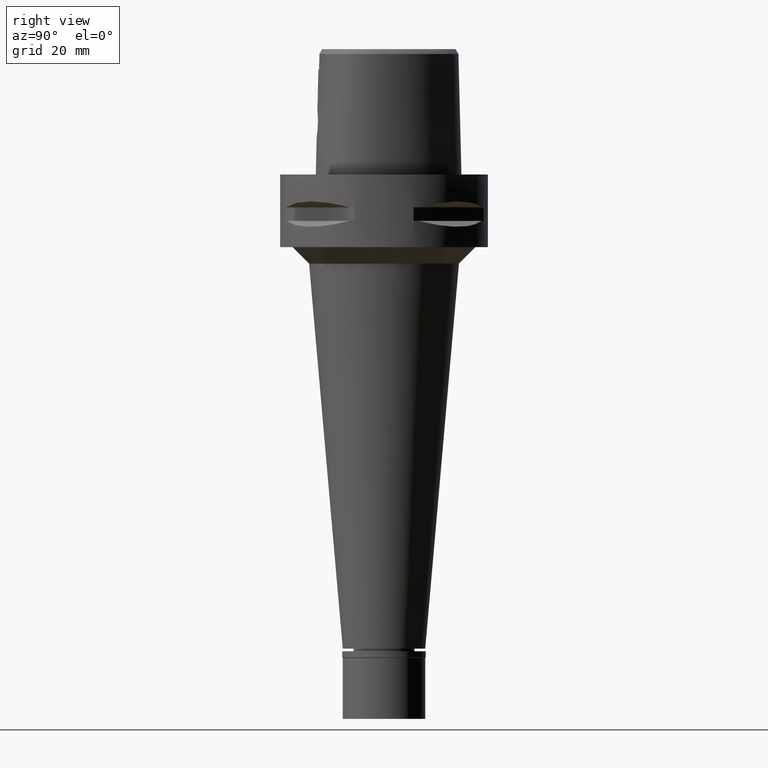
[diagram: clean part render]
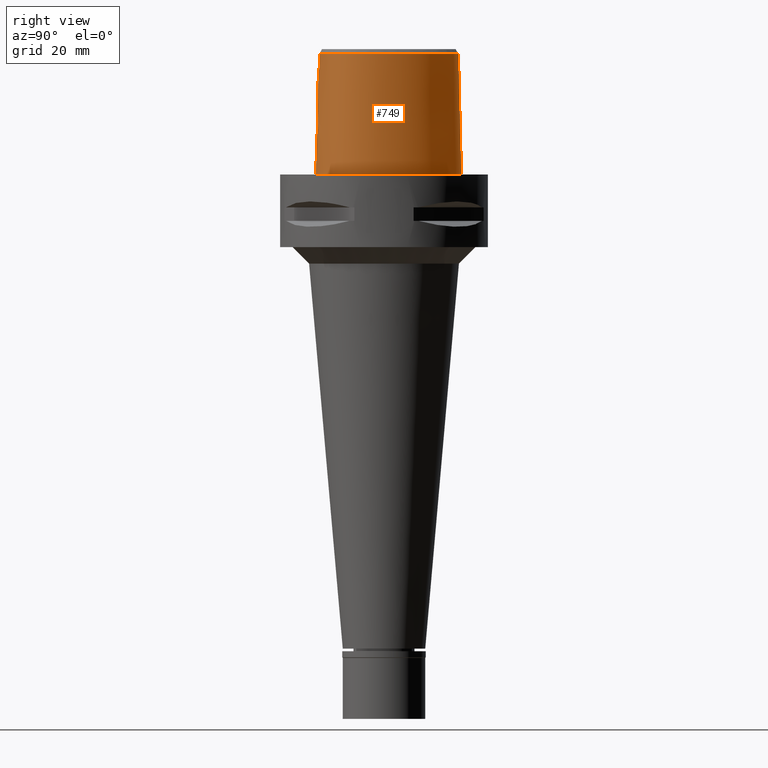
[diagram: same view with one face highlighted and labeled with its STEP entity id]
A machine part, right view. The second image highlights one B-rep face of the part: STEP entity #749.
In plain terms, the highlighted face is a freeform B-spline surface patch.
Its self-contained STEP definition (entity closure, byte-faithful):
#12 = CARTESIAN_POINT ( 'NONE',  ( 2.568271205287000036, 23.31126238154999797, -0.7304375839704999596 ) ) ;
#32 = CARTESIAN_POINT ( 'NONE',  ( 21.05621915639000008, -0.4440251511350999936, 37.25231678249000566 ) ) ;
#45 = CARTESIAN_POINT ( 'NONE',  ( 3.799139208486999594E-11, 23.47499999999000053, 6.972200594645999482E-14 ) ) ;
#58 = CARTESIAN_POINT ( 'NONE',  ( 18.89485288838000088, -12.27684381337999930, 37.25231678249000566 ) ) ;
#61 = CARTESIAN_POINT ( 'NONE',  ( 2.963663714774203761, -20.09292616174767332, 18.26078922981426444 ) ) ;
#80 = CARTESIAN_POINT ( 'NONE',  ( -0.4431573443615000052, 22.53713883449000122, 37.25231678249000566 ) ) ;
#104 = CARTESIAN_POINT ( 'NONE',  ( 0.5662264631320998998, 22.56729423618000041, 37.25231678249000566 ) ) ;
#120 = CARTESIAN_POINT ( 'NONE',  ( 5.098437017283536932, 22.52602539063039089, -8.944667923005411581E-16 ) ) ;
#175 = CARTESIAN_POINT ( 'NONE',  ( 17.90324024157905924, -13.53935104435990056, 36.52186680739948343 ) ) ;
#202 = CARTESIAN_POINT ( 'NONE',  ( 1.512241740947311897, -20.34898939911309412, 11.74291348788425182 ) ) ;
#214 = EDGE_CURVE ( 'NONE', #5008, #4435, #1719, .T. ) ;
#220 = CARTESIAN_POINT ( 'NONE',  ( -0.4520500676064000412, -20.37458451787000158, 11.93048053818000120 ) ) ;
#233 = CARTESIAN_POINT ( 'NONE',  ( 0.8992242105118642970, -20.37493864171640112, 11.54888304297133850 ) ) ;
#240 = B_SPLINE_CURVE_WITH_KNOTS ( 'NONE', 3,
 ( #4028, #2852, #437, #3571 ),
 .UNSPECIFIED., .F., .F.,
 ( 4, 4 ),
 ( 0.0000000000000000000, 1.000000000000000000 ),
 .UNSPECIFIED. ) ;
#248 = CARTESIAN_POINT ( 'NONE',  ( 1.853272125638999901, -20.08023992014999948, 24.59139866034000121 ) ) ;
#250 = CARTESIAN_POINT ( 'NONE',  ( 2.041042029990999821E-08, -19.88004246002000031, 31.80000004972000127 ) ) ;
#258 = CARTESIAN_POINT ( 'NONE',  ( 3.601204257517719665, -20.14847629606039092, 13.64574922402664470 ) ) ;
#270 = CARTESIAN_POINT ( 'NONE',  ( 11.02138184146999933, -18.31230465117999984, 24.59139866034000121 ) ) ;
#283 = CARTESIAN_POINT ( 'NONE',  ( -6.936546298697000348E-13, -20.38876923348000147, 11.44999999999999929 ) ) ;
#333 = CARTESIAN_POINT ( 'NONE',  ( 1.857884076962256881, -20.14843429220476878, 19.09932929553220049 ) ) ;
#343 = CARTESIAN_POINT ( 'NONE',  ( 16.57726040872999818, -15.19304470656999939, 24.59139866034000121 ) ) ;
#370 = CARTESIAN_POINT ( 'NONE',  ( 21.13154892185999856, -6.714587082669999596, 37.25231678249000566 ) ) ;
#374 = VERTEX_POINT ( 'NONE', #2181 ) ;
#386 = CARTESIAN_POINT ( 'NONE',  ( 21.07429999882302596, -0.4408303635841511192, 36.52186680739948343 ) ) ;
#397 = CARTESIAN_POINT ( 'NONE',  ( 21.31039837224000166, -4.105938496790999537, 37.25231678249000566 ) ) ;
#411 = CARTESIAN_POINT ( 'NONE',  ( 13.70645019739050952, 15.04851265230145607, 36.52186680739948343 ) ) ;
#419 = CARTESIAN_POINT ( 'NONE',  ( 20.65879052760000079, -10.48283621446000069, 11.93048053818000120 ) ) ;
#431 = CARTESIAN_POINT ( 'NONE',  ( 7.571159434350728468, 21.31457031249556167, -8.944667923005411581E-16 ) ) ;
#437 = CARTESIAN_POINT ( 'NONE',  ( 1.251533272183361412, -19.88005341395202308, 31.80000012137769616 ) ) ;
#443 = CARTESIAN_POINT ( 'NONE',  ( 20.96392254220999973, -8.820258326734000676, 24.59139866034000121 ) ) ;
#462 = CARTESIAN_POINT ( 'NONE',  ( 10.91891095220743679, -18.03046396092910086, 36.52186680739948343 ) ) ;
#479 = CARTESIAN_POINT ( 'NONE',  ( 2.441475652817582276, -20.12145690552322463, 18.73255419730240945 ) ) ;
#488 = CARTESIAN_POINT ( 'NONE',  ( 10.74572891059364999, 19.17433593750017806, -8.944667923005411581E-16 ) ) ;
#499 = EDGE_LOOP ( 'NONE', ( #3419, #3217, #4010, #2018, #997, #2231, #2820, #616 ) ) ;
#502 = CARTESIAN_POINT ( 'NONE',  ( -1.812904133302999920E-11, 22.56201468012000078, 36.52186680743999858 ) ) ;
#503 = CARTESIAN_POINT ( 'NONE',  ( 3.664531516593255933, -20.05177522854884486, 17.23667186347703151 ) ) ;
#559 = CARTESIAN_POINT ( 'NONE',  ( 3.799139208486999594E-11, 23.47499999999000053, 6.972200594645999482E-14 ) ) ;
#574 = CARTESIAN_POINT ( 'NONE',  ( 4.467522181835875017, -19.48130276147496787, 36.52186680739948343 ) ) ;
#597 = CARTESIAN_POINT ( 'NONE',  ( 3.749619629275789290, -20.04776342526935196, 17.03066201961066639 ) ) ;
#616 = ORIENTED_EDGE ( 'NONE', *, *, #2611, .T. ) ;
#625 = CARTESIAN_POINT ( 'NONE',  ( 3.927835586672350665, -20.09244225005365436, 14.47776275463071904 ) ) ;
#626 = CARTESIAN_POINT ( 'NONE',  ( 0.5826623333935999627, 22.88447448249999994, 24.59139866034000121 ) ) ;
#651 = CARTESIAN_POINT ( 'NONE',  ( 2.714805267639515129, -20.25771215066832553, 12.49436786205450822 ) ) ;
#699 = CARTESIAN_POINT ( 'NONE',  ( 4.038472190140931062, -20.06169765068718647, 15.18805390983102654 ) ) ;
#739 = CARTESIAN_POINT ( 'NONE',  ( 19.81622831685999842, -11.44090475189000067, 24.59139866034000121 ) ) ;
#749 = ADVANCED_FACE ( 'NONE', ( #3823 ), #3201, .T. ) ;
#760 = CARTESIAN_POINT ( 'NONE',  ( 21.94536983274000264, -4.102220498972000584, 11.93048053818000120 ) ) ;
#778 = CARTESIAN_POINT ( 'NONE',  ( 19.88562079789111081, 4.345879946636903135, 36.52186680739948343 ) ) ;
#786 = CARTESIAN_POINT ( 'NONE',  ( 21.68301106119000110, -0.3332743948079999741, 11.93048053818000120 ) ) ;
#814 = CARTESIAN_POINT ( 'NONE',  ( 2.438150623161000397, 22.68791648776000258, 24.59139866034000121 ) ) ;
#824 = CARTESIAN_POINT ( 'NONE',  ( 18.56841065141960812, -14.16937988280595739, -8.944667923005411581E-16 ) ) ;
#833 = CARTESIAN_POINT ( 'NONE',  ( 13.69241983077999869, 15.03666395032999858, 37.25231678249000566 ) ) ;
#836 = CARTESIAN_POINT ( 'NONE',  ( 1.615797869211369031, -20.15746371882925558, 19.21438957845421314 ) ) ;
#843 = CARTESIAN_POINT ( 'NONE',  ( 14.40795638958558200, 15.64093750000613348, -8.944667923005411581E-16 ) ) ;
#856 = CARTESIAN_POINT ( 'NONE',  ( 2.373090332098000133, 22.37624354085999911, 37.25231678249000566 ) ) ;
#873 = CARTESIAN_POINT ( 'NONE',  ( 14.67337964419943042, -17.21410156249768519, -8.944667923005411581E-16 ) ) ;
#892 = CARTESIAN_POINT ( 'NONE',  ( 0.0000000000000000000, -20.18628283968999781, 19.55000000000000071 ) ) ;
#992 = CARTESIAN_POINT ( 'NONE',  ( 18.90964962507846536, -12.28759713487224658, 36.52186680739948343 ) ) ;
#997 = ORIENTED_EDGE ( 'NONE', *, *, #1985, .T. ) ;
#1027 = DIRECTION ( 'NONE',  ( 1.536145637057960394E-12, 0.02499051290971940689, -0.9996876883629751687 ) ) ;
#1028 = CARTESIAN_POINT ( 'NONE',  ( -0.4439347129453000140, -19.74161844598999949, 37.25231678249000566 ) ) ;
#1043 = CARTESIAN_POINT ( 'NONE',  ( 1.946932004676015238, -20.32307767112846975, 11.93880059974637398 ) ) ;
#1059 = CARTESIAN_POINT ( 'NONE',  ( 11.23887130171000059, -18.91049775788000176, -0.7304375839704999596 ) ) ;
#1072 = CARTESIAN_POINT ( 'NONE',  ( 4.050056915598086782, -20.04604162830171177, 15.75352367833779788 ) ) ;
#1094 = CARTESIAN_POINT ( 'NONE',  ( 1.029075032816727520, -20.37061658179029067, 11.58059618244477207 ) ) ;
#1117 = CARTESIAN_POINT ( 'NONE',  ( 3.918450559639469866, -20.04172061130668681, 16.53268210946604100 ) ) ;
#1130 = CARTESIAN_POINT ( 'NONE',  ( 21.62788410249000393, -4.104079497880999128, 24.59139866034000121 ) ) ;
#1144 = CARTESIAN_POINT ( 'NONE',  ( 1.676170890441996519, -20.15531313274218306, 19.18748000605742732 ) ) ;
#1148 = CARTESIAN_POINT ( 'NONE',  ( -1.812904133302999920E-11, 22.56201468012000078, 36.52186680743999858 ) ) ;
#1155 = CARTESIAN_POINT ( 'NONE',  ( 22.07548128874000071, -6.850245535142999387, -0.7304375839704999596 ) ) ;
#1178 = CARTESIAN_POINT ( 'NONE',  ( 19.86834436674000415, 4.339653687837000007, 37.25231678249000566 ) ) ;
#1203 = CARTESIAN_POINT ( 'NONE',  ( 7.580410838945000229, 21.33037926083000002, -0.7304375839704999596 ) ) ;
#1231 = CARTESIAN_POINT ( 'NONE',  ( 20.76670354688000231, 4.663413653178999141, -0.7304375839704999596 ) ) ;
#1234 = CARTESIAN_POINT ( 'NONE',  ( 3.346839698137017205, -20.07044986577229650, 17.78445641054264570 ) ) ;
#1241 = CARTESIAN_POINT ( 'NONE',  ( 22.05732874322270121, -6.847636718749270379, -8.944667923005411581E-16 ) ) ;
#1254 = CARTESIAN_POINT ( 'NONE',  ( 3.266229437020722326, -20.07524359687617377, 17.89916302261439895 ) ) ;
#1299 = VERTEX_POINT ( 'NONE', #2941 ) ;
#1300 = CARTESIAN_POINT ( 'NONE',  ( 3.637738219117000238, -19.56971420299000286, 36.52185956443999970 ) ) ;
#1308 = CARTESIAN_POINT ( 'NONE',  ( -0.7025952887271000868, 23.15559749862999794, 11.93048053818000120 ) ) ;
#1349 = CARTESIAN_POINT ( 'NONE',  ( 3.637738219117000238, -19.56971420299000286, 36.52185956443999970 ) ) ;
#1377 = CARTESIAN_POINT ( 'NONE',  ( -6.936546298697000348E-13, -20.38876923348000147, 11.44999999999999929 ) ) ;
#1405 = CARTESIAN_POINT ( 'NONE',  ( 2.570157103600570370, -20.27168289956678038, 12.36915238101241599 ) ) ;
#1417 = LINE ( 'NONE', #1824, #4391 ) ;
#1429 = CARTESIAN_POINT ( 'NONE',  ( 3.714884036183550897, -20.13054316305255043, 13.88679975161858771 ) ) ;
#1440 = CARTESIAN_POINT ( 'NONE',  ( 6.232237598181000315, -19.68961187426999970, 24.59139866034000121 ) ) ;
#1456 = CARTESIAN_POINT ( 'NONE',  ( 1.734698794257270027, -20.33694537581526163, 11.83451168615765425 ) ) ;
#1472 = CARTESIAN_POINT ( 'NONE',  ( 14.36818034192000049, -16.67825731685000079, 24.59139866034000121 ) ) ;
#1487 = CARTESIAN_POINT ( 'NONE',  ( 3.787481123649921955, -20.04605982308304490, 16.93510773912660028 ) ) ;
#1506 = CARTESIAN_POINT ( 'NONE',  ( 3.950314841473463900, -20.04137577208484444, 16.40278404201346873 ) ) ;
#1546 = CARTESIAN_POINT ( 'NONE',  ( 20.36913779871999708, -10.35391845991999915, 24.59139866034000121 ) ) ;
#1568 = CARTESIAN_POINT ( 'NONE',  ( 20.16779742678000176, 4.447573676283999689, 24.59139866034000121 ) ) ;
#1589 = CARTESIAN_POINT ( 'NONE',  ( 7.259695479676999241, 20.78233571855999884, 24.59139866034000121 ) ) ;
#1613 = CARTESIAN_POINT ( 'NONE',  ( 14.21104802786999954, -16.40237711117000430, 37.25231678249000566 ) ) ;
#1638 = CARTESIAN_POINT ( 'NONE',  ( -0.4685451983303999812, 23.16976078515000026, 11.93048053818000120 ) ) ;
#1675 = CARTESIAN_POINT ( 'NONE',  ( 3.637738219117000238, -19.56971420299000286, 36.52185956443999970 ) ) ;
#1719 = B_SPLINE_CURVE_WITH_KNOTS ( 'NONE', 3,
 ( #1838, #3403, #4821, #1675 ),
 .UNSPECIFIED., .F., .F.,
 ( 4, 4 ),
 ( 0.0000000000000000000, 1.000000000000000000 ),
 .UNSPECIFIED. ) ;
#1761 = CARTESIAN_POINT ( 'NONE',  ( 14.22011350746447000, -16.41829354688364617, 36.52186680739948343 ) ) ;
#1787 = CARTESIAN_POINT ( 'NONE',  ( 0.2521712344239959158, -20.38876923348000503, 11.44999999999999751 ) ) ;
#1788 = CARTESIAN_POINT ( 'NONE',  ( -0.6642815369290000493, 22.52377652673999719, 37.25231678249000566 ) ) ;
#1811 = CARTESIAN_POINT ( 'NONE',  ( 1.223097168518407996, -20.36283687392326769, 11.63851210756519627 ) ) ;
#1824 = CARTESIAN_POINT ( 'NONE',  ( -1.812904133302999920E-11, 22.56201468012000078, 36.52186680743999858 ) ) ;
#1825 = CARTESIAN_POINT ( 'NONE',  ( 1.836480386884999927, -19.76356528371999843, 37.25231678249000566 ) ) ;
#1827 = CARTESIAN_POINT ( 'NONE',  ( 6.821602384384292943E-09, -19.98212988583243543, 27.71666688228181741 ) ) ;
#1835 = CARTESIAN_POINT ( 'NONE',  ( 3.646186824048230246, -20.14160291728383356, 13.73489521538706271 ) ) ;
#1838 = CARTESIAN_POINT ( 'NONE',  ( 3.736696120837999402, -19.67778323291999953, 31.80000004972999861 ) ) ;
#1849 = CARTESIAN_POINT ( 'NONE',  ( 10.91263711134999959, -18.01320809782000154, 37.25231678249000566 ) ) ;
#1863 = CARTESIAN_POINT ( 'NONE',  ( 3.828843160387036981, -20.04436026481759825, 16.82309517697780166 ) ) ;
#1889 = CARTESIAN_POINT ( 'NONE',  ( 3.734101483925077680, -20.12735841093752498, 13.93178299878139015 ) ) ;
#1910 = CARTESIAN_POINT ( 'NONE',  ( 3.128908175272121284, -20.08331652991464367, 18.07252174272648659 ) ) ;
#1921 = CARTESIAN_POINT ( 'NONE',  ( 4.987110684452000342, 22.24795284815000329, 11.93048053818000120 ) ) ;
#1938 = CARTESIAN_POINT ( 'NONE',  ( 4.757642236485140508, 21.67478320247805001, 36.52186680739948343 ) ) ;
#1948 = CARTESIAN_POINT ( 'NONE',  ( 17.80867312007999814, 10.28184210814000110, 11.93048053818000120 ) ) ;
#1964 = CARTESIAN_POINT ( 'NONE',  ( 21.32871516739777107, -4.105831245034501364, 36.52186680739948343 ) ) ;
#1972 = CARTESIAN_POINT ( 'NONE',  ( 20.09084477996000118, -11.59945464138999860, 11.93048053818000120 ) ) ;
#1985 = EDGE_CURVE ( 'NONE', #374, #2339, #5011, .T. ) ;
#1994 = CARTESIAN_POINT ( 'NONE',  ( 17.88993660319000156, -13.52675024955999916, 37.25231678249000566 ) ) ;
#2007 = CARTESIAN_POINT ( 'NONE',  ( 2.564517726975577006, 23.29328124999284455, -8.944667923005411581E-16 ) ) ;
#2016 = CARTESIAN_POINT ( 'NONE',  ( 14.17879762237999941, 15.44741198410000038, 11.93048053818000120 ) ) ;
#2018 = ORIENTED_EDGE ( 'NONE', *, *, #2321, .T. ) ;
#2019 = CARTESIAN_POINT ( 'NONE',  ( 3.560199545960234691, -20.05783334522597983, 17.44879127146177211 ) ) ;
#2030 = CARTESIAN_POINT ( 'NONE',  ( 19.64947365863864803, -12.82525390625422546, -8.944667923005411581E-16 ) ) ;
#2034 = CARTESIAN_POINT ( 'NONE',  ( 7.300578979382184031, -19.07170738131041787, 36.52186680739948343 ) ) ;
#2048 = CARTESIAN_POINT ( 'NONE',  ( 2.278271780665462654, -20.12965837756856047, 18.84858243060469718 ) ) ;
#2108 = CARTESIAN_POINT ( 'NONE',  ( 2.113823673067706910, -20.67499999999523652, -8.944667923005413553E-16 ) ) ;
#2158 = CARTESIAN_POINT ( 'NONE',  ( 3.756069937840027961, -20.04746516202720485, 17.01476473572080295 ) ) ;
#2173 = CARTESIAN_POINT ( 'NONE',  ( -0.6657939564071999605, -19.73734232002000155, 37.25231678249000566 ) ) ;
#2181 = CARTESIAN_POINT ( 'NONE',  ( 2.041042029990999821E-08, -19.88004246002000031, 31.80000004972000127 ) ) ;
#2228 = CARTESIAN_POINT ( 'NONE',  ( 6.841583710080860677E-09, -20.08420636276081694, 23.63333344114095524 ) ) ;
#2231 = ORIENTED_EDGE ( 'NONE', *, *, #4648, .F. ) ;
#2238 = CARTESIAN_POINT ( 'NONE',  ( 1.538196023384281963, -20.34760033576341698, 11.75346900688111873 ) ) ;
#2260 = B_SPLINE_CURVE_WITH_KNOTS ( 'NONE', 3,
 ( #1148, #5054, #4264, #1938, #3501, #3934, #411, #4284, #778, #386, #1964, #3526, #3702, #2547, #2469, #992, #175, #2442, #1761, #462, #2034, #574, #1349 ),
 .UNSPECIFIED., .F., .F.,
 ( 4, 1, 1, 1, 1, 1, 1, 1, 1, 1, 1, 1, 1, 1, 1, 1, 1, 1, 1, 1, 4 ),
 ( 0.0000000000000000000, 0.04382683003322051379, 0.08765366006602015592, 0.1314804900989251235, 0.1753073201318301189, 0.2629609801974295280, 0.3506146402631342696, 0.4382683003289440937, 0.5259219603945436416, 0.5697487904274485260, 0.6135756204602482722, 0.6574024504931531565, 0.6793158655095530296, 0.7012292805260580408, 0.7231426955424580250, 0.7450561105587526489, 0.7888829405916576443, 0.8327097706245625286, 0.8765366006573621638, 0.9641902607230984357, 1.000000000000000000 ),
 .UNSPECIFIED. ) ;
#2266 = CARTESIAN_POINT ( 'NONE',  ( 1.319918021587722201, -20.35862286549530609, 11.67005492354040541 ) ) ;
#2304 = CARTESIAN_POINT ( 'NONE',  ( 21.44619304415000016, -6.759806566827999852, 24.59139866034000121 ) ) ;
#2314 = CARTESIAN_POINT ( 'NONE',  ( 2.145109563004953479, -20.13623476436782767, 18.93764899034225735 ) ) ;
#2321 = EDGE_CURVE ( 'NONE', #5008, #374, #240, .T. ) ;
#2325 = CARTESIAN_POINT ( 'NONE',  ( 16.38077695828999936, -14.94316464521999954, 37.25231678249000566 ) ) ;
#2339 = VERTEX_POINT ( 'NONE', #3238 ) ;
#2352 = CARTESIAN_POINT ( 'NONE',  ( 7.420053159310999291, 21.05635748970000165, 11.93048053818000120 ) ) ;
#2378 = CARTESIAN_POINT ( 'NONE',  ( 19.66427014433000053, -12.83600704532999970, -0.7304375839704999596 ) ) ;
#2388 = CARTESIAN_POINT ( 'NONE',  ( 20.74942740880018377, 4.657187499999361435, -8.944667923005411581E-16 ) ) ;
#2395 = CARTESIAN_POINT ( 'NONE',  ( 7.099337800043000080, 20.50831394743000402, 37.25231678249000566 ) ) ;
#2399 = CARTESIAN_POINT ( 'NONE',  ( 1.028316776408467970, -20.17741541788669934, 19.45785258273984297 ) ) ;
#2425 = CARTESIAN_POINT ( 'NONE',  ( 2.871827064480841685, -20.09820085661024791, 18.35572725119103055 ) ) ;
#2438 = CARTESIAN_POINT ( 'NONE',  ( 16.95889172594020167, -15.67838867187442631, -8.944667923005411581E-16 ) ) ;
#2442 = CARTESIAN_POINT ( 'NONE',  ( 16.39211273426571935, -14.95758104716080794, 36.52186680739948343 ) ) ;
#2469 = CARTESIAN_POINT ( 'NONE',  ( 19.55745538001106354, -11.29150212658032082, 36.52186680739948343 ) ) ;
#2547 = CARTESIAN_POINT ( 'NONE',  ( 20.09619608768826637, -10.23243839430307034, 36.52186680739948343 ) ) ;
#2558 = CARTESIAN_POINT ( 'NONE',  ( -0.6718836854628000843, -20.05378860052000078, 24.59139866034000121 ) ) ;
#2571 = CARTESIAN_POINT ( 'NONE',  ( 3.047166273135562431, -20.22275119218792128, 12.81895386053286323 ) ) ;
#2584 = CARTESIAN_POINT ( 'NONE',  ( 1.886855603145999982, -20.71358919300000068, -0.7304375839704999596 ) ) ;
#2600 = CARTESIAN_POINT ( 'NONE',  ( 3.217746676397106320, -20.20246117936812524, 13.02641545331656303 ) ) ;
#2611 = EDGE_CURVE ( 'NONE', #2700, #3305, #4025, .T. ) ;
#2616 = CARTESIAN_POINT ( 'NONE',  ( 11.13012657158999907, -18.61140120453000080, 11.93048053818000120 ) ) ;
#2626 = CARTESIAN_POINT ( 'NONE',  ( 4.026066118139421057, -20.04247127186134136, 16.01314433202412246 ) ) ;
#2647 = CARTESIAN_POINT ( 'NONE',  ( 2.808534909594999185, -20.24816297014837474, 12.58189563908295128 ) ) ;
#2661 = CARTESIAN_POINT ( 'NONE',  ( -0.6779734145183999861, -20.37023488102000002, 11.93048053818000120 ) ) ;
#2685 = CARTESIAN_POINT ( 'NONE',  ( 21.76083716643999821, -6.805026050985000907, 11.93048053818000120 ) ) ;
#2700 = VERTEX_POINT ( 'NONE', #3726 ) ;
#2706 = CARTESIAN_POINT ( 'NONE',  ( 16.77374385917000410, -15.44292476791000190, 11.93048053818000120 ) ) ;
#2728 = CARTESIAN_POINT ( 'NONE',  ( 14.42198651819000155, 15.65278600097999906, -0.7304375839704999596 ) ) ;
#2754 = CARTESIAN_POINT ( 'NONE',  ( 2.503210914223999772, 22.99958943465999894, 11.93048053818000120 ) ) ;
#2780 = CARTESIAN_POINT ( 'NONE',  ( 18.35112157714999981, -13.96357039242000120, 11.93048053818000120 ) ) ;
#2782 = CARTESIAN_POINT ( 'NONE',  ( 2.894397137079437243, -20.09690797886509372, 18.33285490821693031 ) ) ;
#2801 = CARTESIAN_POINT ( 'NONE',  ( 0.6155340739164999464, 23.51883497514999988, -0.7304375839704999596 ) ) ;
#2820 = ORIENTED_EDGE ( 'NONE', *, *, #4440, .T. ) ;
#2835 = CARTESIAN_POINT ( 'NONE',  ( 2.673773366373647598, -20.10928484861024401, 18.54484060076604734 ) ) ;
#2852 = CARTESIAN_POINT ( 'NONE',  ( 2.503154195452322206, -19.81241979350790317, 31.80000012137769616 ) ) ;
#2941 = CARTESIAN_POINT ( 'NONE',  ( -6.936546298697000348E-13, -20.38876923348000147, 11.44999999999999929 ) ) ;
#2951 = CARTESIAN_POINT ( 'NONE',  ( 4.045002722263133954, -20.05852232572153326, 15.28257568076945283 ) ) ;
#2992 = CARTESIAN_POINT ( 'NONE',  ( 6.175998609135999295, -19.37631798774999581, 37.25231678249000566 ) ) ;
#3007 = CARTESIAN_POINT ( 'NONE',  ( 4.048214080092302325, -20.05577732092617538, 15.37582243512925828 ) ) ;
#3033 = CARTESIAN_POINT ( 'NONE',  ( 3.438614496833575895, -20.17221373686728825, 13.35618706787884769 ) ) ;
#3055 = CARTESIAN_POINT ( 'NONE',  ( 3.860417298872394376, -20.04330287886046236, 16.72646853219081464 ) ) ;
#3067 = CARTESIAN_POINT ( 'NONE',  ( 18.08416038109999846, 10.44089487092999846, -0.7304375839704999596 ) ) ;
#3093 = CARTESIAN_POINT ( 'NONE',  ( 20.07948506984999781, -10.22500070537000028, 37.25231678249000566 ) ) ;
#3113 = CARTESIAN_POINT ( 'NONE',  ( 10.75753573661000040, 19.18839675567999947, -0.7304375839704999596 ) ) ;
#3135 = CARTESIAN_POINT ( 'NONE',  ( 13.93560872657999994, 15.24203796720999904, 24.59139866034000121 ) ) ;
#3162 = CARTESIAN_POINT ( 'NONE',  ( 20.46725048683000026, 4.555493664732000347, 11.93048053818000120 ) ) ;
#3168 = CARTESIAN_POINT ( 'NONE',  ( 0.4954876483524907060, -20.18628283969000847, 19.54999999999999716 ) ) ;
#3177 = CARTESIAN_POINT ( 'NONE',  ( 20.34961798556402357, -11.74885742187094628, -8.944667923005411581E-16 ) ) ;
#3201 = B_SPLINE_SURFACE_WITH_KNOTS ( 'NONE', 3, 3, ( 
 ( #4990, #2661, #2558, #2173 ),
 ( #3745, #220, #3799, #1028 ),
 ( #2584, #3773, #248, #1825 ),
 ( #3388, #4936, #1440, #2992 ),
 ( #1059, #2616, #270, #1849 ),
 ( #3412, #4964, #1472, #1613 ),
 ( #4250, #2706, #343, #2325 ),
 ( #3942, #2780, #4636, #1994 ),
 ( #2378, #3555, #3870, #58 ),
 ( #4324, #1972, #739, #5063 ),
 ( #4726, #419, #1546, #3093 ),
 ( #4272, #3578, #443, #4701 ),
 ( #1155, #2685, #2304, #370 ),
 ( #3893, #760, #1130, #397 ),
 ( #5037, #786, #4661, #32 ),
 ( #1231, #3162, #1568, #1178 ),
 ( #3067, #1948, #3513, #4346 ),
 ( #2728, #2016, #3135, #833 ),
 ( #3113, #4293, #3485, #4680 ),
 ( #1203, #2352, #1589, #2395 ),
 ( #3961, #1921, #3922, #3533 ),
 ( #12, #2754, #814, #856 ),
 ( #2801, #4925, #626, #104 ),
 ( #3628, #1638, #4009, #80 ),
 ( #3605, #1308, #4166, #1788 ) ),
 .UNSPECIFIED., .F., .F., .F.,
 ( 4, 1, 1, 1, 1, 1, 1, 1, 1, 1, 1, 1, 1, 1, 1, 1, 1, 1, 1, 1, 1, 1, 4 ),
 ( 4, 4 ),
 ( -0.008985960173571999957, 0.0000000000000000000, 0.08333333333337000770, 0.1666666666667000196, 0.2083333333333000081, 0.2500000000000000000, 0.2916666666666999919, 0.3124999999998999689, 0.3333333333332000326, 0.3541666666666000163, 0.3749999999998999689, 0.4166666666666000163, 0.4583333333332000326, 0.4999999999998999689, 0.5833333333331000015, 0.6666666666664999852, 0.7499999999998000488, 0.8333333333329999704, 0.8749999999997000177, 0.9166666666664000651, 0.9583333333329999704, 1.000000000000000000, 1.011710456763000199 ),
 ( 3.720669727175000335E-09, 0.9999998102459000116 ),
 .UNSPECIFIED. ) ;
#3217 = ORIENTED_EDGE ( 'NONE', *, *, #4378, .T. ) ;
#3218 = CARTESIAN_POINT ( 'NONE',  ( 1.798140377636991305, -20.15076695762396852, 19.12956592877852202 ) ) ;
#3235 = B_SPLINE_CURVE_WITH_KNOTS ( 'NONE', 3,
 ( #283, #1787, #3810, #233, #1094, #1811, #2266, #3729, #4977, #202, #3376, #2238, #1456, #1043, #3349, #4620, #1405, #3834, #651, #3784, #2647, #4898, #3427, #4924, #2571, #2600, #3033, #4164, #258, #1835, #4109, #1429, #4134, #1889, #3398, #625, #4948, #4211, #699, #2951, #3007, #4576, #5000, #1072, #2626, #1506, #1117, #3055, #1863, #1487, #4517, #2158, #597, #4600, #503, #2019, #1234, #1254, #1910, #4731, #3858, #61, #4400, #2782, #4013, #2425, #3252, #2835, #4372, #479, #4348, #3990, #2048, #2314, #4238, #333, #3218, #1144, #836, #2399, #3168, #892 ),
 .UNSPECIFIED., .F., .F.,
 ( 4, 2, 2, 1, 1, 1, 2, 2, 2, 2, 2, 1, 1, 2, 2, 2, 2, 1, 1, 2, 2, 2, 2, 1, 2, 2, 2, 2, 1, 1, 1, 2, 2, 2, 2, 2, 1, 1, 2, 2, 2, 1, 2, 2, 2, 2, 2, 4 ),
 ( 0.0000000000000000000, 0.06249999999999715505, 0.09374999999999576727, 0.1093749999999951150, 0.1171874999999947958, 0.1210937499999946571, 0.1230468749999946709, 0.1249999999999946987, 0.1874999999999998890, 0.2187500000000023592, 0.2343750000000036360, 0.2421875000000042744, 0.2460937500000045797, 0.2480468750000048572, 0.2500000000000051625, 0.3125000000000179301, 0.3437500000000244249, 0.3593750000000277001, 0.3671875000000293654, 0.3710937500000301981, 0.3750000000000309752, 0.4375000000000454636, 0.4687500000000529576, 0.4843750000000566769, 0.4921875000000586753, 0.5000000000000607292, 0.5625000000000763833, 0.5937500000000842659, 0.6093750000000877076, 0.6171875000000894840, 0.6210937500000899281, 0.6230468750000899281, 0.6250000000000898170, 0.6875000000000851541, 0.7187500000000828226, 0.7343750000000814904, 0.7421875000000808242, 0.7460937500000806022, 0.7480468750000802691, 0.7500000000000799361, 0.7812500000000707212, 0.7968750000000659472, 0.8046875000000636158, 0.8125000000000612843, 0.8437500000000510703, 0.8593750000000459632, 0.8750000000000407452, 1.000000000000000000 ),
 .UNSPECIFIED. ) ;
#3238 = CARTESIAN_POINT ( 'NONE',  ( 0.0000000000000000000, -20.18628283968999781, 19.55000000000000071 ) ) ;
#3252 = CARTESIAN_POINT ( 'NONE',  ( 2.772180003756188782, -20.10389984255201057, 18.45552640414263124 ) ) ;
#3266 = CARTESIAN_POINT ( 'NONE',  ( 21.97832647786517768, -0.2810937499999933697, -8.944667923005411581E-16 ) ) ;
#3269 = DIRECTION ( 'NONE',  ( -4.234890489166874877E-13, -0.02499051295389925070, -0.9996876883618708298 ) ) ;
#3279 = VERTEX_POINT ( 'NONE', #502 ) ;
#3305 = VERTEX_POINT ( 'NONE', #559 ) ;
#3349 = CARTESIAN_POINT ( 'NONE',  ( 2.282426779291145458, -20.29697268062908933, 12.15178042133221226 ) ) ;
#3376 = CARTESIAN_POINT ( 'NONE',  ( 1.528203702475597447, -20.34813849356513060, 11.74937770678979554 ) ) ;
#3388 = CARTESIAN_POINT ( 'NONE',  ( 6.344715576272000668, -20.31619964730000305, -0.7304375839704999596 ) ) ;
#3390 = CARTESIAN_POINT ( 'NONE',  ( 0.0000000000000000000, -20.18628283968999781, 19.55000000000000071 ) ) ;
#3398 = CARTESIAN_POINT ( 'NONE',  ( 3.850336017801454958, -20.10779490602000052, 14.21200268958511614 ) ) ;
#3403 = CARTESIAN_POINT ( 'NONE',  ( 3.704239288984441103, -19.64128042389065598, 33.37395322129999897 ) ) ;
#3412 = CARTESIAN_POINT ( 'NONE',  ( 14.68244497000999971, -17.23001772821000088, -0.7304375839704999596 ) ) ;
#3419 = ORIENTED_EDGE ( 'NONE', *, *, #4774, .F. ) ;
#3427 = CARTESIAN_POINT ( 'NONE',  ( 2.844443223519995456, -20.24438370416207889, 12.61699047241435245 ) ) ;
#3485 = CARTESIAN_POINT ( 'NONE',  ( 10.34823243470999898, 18.70095505876999908, 24.59139866034000121 ) ) ;
#3501 = CARTESIAN_POINT ( 'NONE',  ( 7.108589361577807963, 20.52412316394693903, 36.52186680739948343 ) ) ;
#3513 = CARTESIAN_POINT ( 'NONE',  ( 17.53318585906000138, 10.12278934533999930, 24.59139866034000121 ) ) ;
#3526 = CARTESIAN_POINT ( 'NONE',  ( 21.14970177531595041, -6.717195943319608453, 36.52186680739948343 ) ) ;
#3533 = CARTESIAN_POINT ( 'NONE',  ( 4.750826222931999965, 21.65775806413000026, 37.25231678249000566 ) ) ;
#3555 = CARTESIAN_POINT ( 'NONE',  ( 19.40779772568000183, -12.64961930135000046, 11.93048053818000120 ) ) ;
#3567 = CARTESIAN_POINT ( 'NONE',  ( 0.8548392423473497592, 23.47500000000153264, -8.944667923005411581E-16 ) ) ;
#3571 = CARTESIAN_POINT ( 'NONE',  ( 2.041042029990999821E-08, -19.88004246002000031, 31.80000004972000127 ) ) ;
#3578 = CARTESIAN_POINT ( 'NONE',  ( 21.26836746626999641, -8.910752260618998832, 11.93048053818000120 ) ) ;
#3605 = CARTESIAN_POINT ( 'NONE',  ( -0.7217521646260999235, 23.47150798458000054, -0.7304375839704999596 ) ) ;
#3628 = CARTESIAN_POINT ( 'NONE',  ( -0.4812391253148000092, 23.48607176047999801, -0.7304375839704999596 ) ) ;
#3646 = CARTESIAN_POINT ( 'NONE',  ( 6.341471019211046389, -20.29812500000096875, -8.944667923005411581E-16 ) ) ;
#3676 = CARTESIAN_POINT ( 'NONE',  ( 20.93173252212153201, -10.60431640624750749, -8.944667923005411581E-16 ) ) ;
#3702 = CARTESIAN_POINT ( 'NONE',  ( 20.67704204634158671, -8.734985285293477730, 36.52186680739948343 ) ) ;
#3726 = CARTESIAN_POINT ( 'NONE',  ( -5.544119096468000877E-12, -20.67499999999999716, 7.264559324463998182E-14 ) ) ;
#3729 = CARTESIAN_POINT ( 'NONE',  ( 1.432283198481784980, -20.35313925196403062, 11.71144805785014142 ) ) ;
#3745 = CARTESIAN_POINT ( 'NONE',  ( -0.4561077449369999592, -20.69106755381000085, -0.7304375839704999596 ) ) ;
#3773 = CARTESIAN_POINT ( 'NONE',  ( 1.870063864392000008, -20.39691455658000052, 11.93048053818000120 ) ) ;
#3784 = CARTESIAN_POINT ( 'NONE',  ( 2.758139611129261759, -20.25337176693246377, 12.53387256028085339 ) ) ;
#3799 = CARTESIAN_POINT ( 'NONE',  ( -0.4479923902758999876, -20.05810148193000231, 24.59139866034000121 ) ) ;
#3810 = CARTESIAN_POINT ( 'NONE',  ( 0.5103796633626155321, -20.38531158553910316, 11.47362071399299488 ) ) ;
#3823 = FACE_OUTER_BOUND ( 'NONE', #499, .T. ) ;
#3834 = CARTESIAN_POINT ( 'NONE',  ( 2.628069135184419647, -20.26622718584413718, 12.41751376643670568 ) ) ;
#3858 = CARTESIAN_POINT ( 'NONE',  ( 3.003300070330046978, -20.09063219836847836, 18.21738618656903697 ) ) ;
#3870 = CARTESIAN_POINT ( 'NONE',  ( 19.15132530703000313, -12.46323155737000121, 24.59139866034000121 ) ) ;
#3893 = CARTESIAN_POINT ( 'NONE',  ( 22.26285556299000135, -4.100361500063000264, -0.7304375839704999596 ) ) ;
#3922 = CARTESIAN_POINT ( 'NONE',  ( 4.868968453692000153, 21.95285545613999645, 24.59139866034000121 ) ) ;
#3934 = CARTESIAN_POINT ( 'NONE',  ( 10.15538781006697278, 18.47129526702709867, 36.52186680739948343 ) ) ;
#3942 = CARTESIAN_POINT ( 'NONE',  ( 18.58171406413000071, -14.18198046384999955, -0.7304375839704999596 ) ) ;
#3953 = CARTESIAN_POINT ( 'NONE',  ( 18.06826688527191038, 10.43171874999979565, -8.944667923005411581E-16 ) ) ;
#3961 = CARTESIAN_POINT ( 'NONE',  ( 5.105252915212000531, 22.54305024017000036, -0.7304375839704999596 ) ) ;
#3990 = CARTESIAN_POINT ( 'NONE',  ( 2.306577398820751412, -20.12825059843536835, 18.82915933036016298 ) ) ;
#4000 = CARTESIAN_POINT ( 'NONE',  ( 21.55524826009576245, -8.996025390625073115, -8.944667923005411581E-16 ) ) ;
#4009 = CARTESIAN_POINT ( 'NONE',  ( -0.4558512713459000332, 22.85344980981999896, 24.59139866034000121 ) ) ;
#4010 = ORIENTED_EDGE ( 'NONE', *, *, #214, .F. ) ;
#4013 = CARTESIAN_POINT ( 'NONE',  ( 2.880252252186727091, -20.09771858834476177, 18.34723526985665387 ) ) ;
#4023 = CARTESIAN_POINT ( 'NONE',  ( -5.544119096468000877E-12, -20.67499999999999716, 7.264559324463998182E-14 ) ) ;
#4025 = B_SPLINE_CURVE_WITH_KNOTS ( 'NONE', 3,
 ( #4023, #2108, #3646, #4764, #873, #2438, #824, #2030, #3177, #3676, #4000, #1241, #4356, #3266, #2388, #3953, #843, #488, #431, #120, #2007, #3567, #45 ),
 .UNSPECIFIED., .F., .F.,
 ( 4, 1, 1, 1, 1, 1, 1, 1, 1, 1, 1, 1, 1, 1, 1, 1, 1, 1, 1, 1, 4 ),
 ( 0.0000000000000000000, 0.08333333333337000770, 0.1666666666667000196, 0.2083333333333000081, 0.2500000000000000000, 0.2916666666666999919, 0.3124999999998999689, 0.3333333333332000326, 0.3541666666666000163, 0.3749999999998999689, 0.4166666666666000163, 0.4583333333332000326, 0.4999999999998999689, 0.5833333333331000015, 0.6666666666664999852, 0.7499999999998000488, 0.8333333333329999704, 0.8749999999997000177, 0.9166666666664000651, 0.9583333333329999704, 1.000000000000000000 ),
 .UNSPECIFIED. ) ;
#4028 = CARTESIAN_POINT ( 'NONE',  ( 3.736696120837999402, -19.67778323291999953, 31.80000004972999861 ) ) ;
#4109 = CARTESIAN_POINT ( 'NONE',  ( 3.694855246837426943, -20.13382494402487666, 13.84093642423405335 ) ) ;
#4134 = CARTESIAN_POINT ( 'NONE',  ( 3.728050960354355237, -20.12836678376847743, 13.91746580426512914 ) ) ;
#4164 = CARTESIAN_POINT ( 'NONE',  ( 3.507024072564136841, -20.16249844635295929, 13.46998661760523319 ) ) ;
#4166 = CARTESIAN_POINT ( 'NONE',  ( -0.6834384128279999970, 22.83968701268999979, 24.59139866034000121 ) ) ;
#4211 = CARTESIAN_POINT ( 'NONE',  ( 4.020733927300638832, -20.06862206084555922, 14.99753541347952179 ) ) ;
#4224 = CARTESIAN_POINT ( 'NONE',  ( 3.736696120837999402, -19.67778323291999953, 31.80000004972999861 ) ) ;
#4238 = CARTESIAN_POINT ( 'NONE',  ( 2.033286809333357148, -20.14125756236684950, 19.00511957505245064 ) ) ;
#4250 = CARTESIAN_POINT ( 'NONE',  ( 16.97022730962000026, -15.69280482925999820, -0.7304375839704999596 ) ) ;
#4264 = CARTESIAN_POINT ( 'NONE',  ( 2.376843874102446463, 22.39422497744327245, 36.52186680739948343 ) ) ;
#4272 = CARTESIAN_POINT ( 'NONE',  ( 21.57281239033000020, -9.001246194503000453, -0.7304375839704999596 ) ) ;
#4284 = CARTESIAN_POINT ( 'NONE',  ( 17.27359236348484473, 9.972912859139858810, 36.52186680739948343 ) ) ;
#4293 = CARTESIAN_POINT ( 'NONE',  ( 10.55288408566000058, 18.94467590722999972, 11.93048053818000120 ) ) ;
#4324 = CARTESIAN_POINT ( 'NONE',  ( 20.36546124305000305, -11.75800453087999919, -0.7304375839704999596 ) ) ;
#4346 = CARTESIAN_POINT ( 'NONE',  ( 17.25769859803999751, 9.963736582545999809, 37.25231678249000566 ) ) ;
#4348 = CARTESIAN_POINT ( 'NONE',  ( 2.360818685576765219, -20.12553152717673655, 18.79091723954072890 ) ) ;
#4356 = CARTESIAN_POINT ( 'NONE',  ( 22.24453907855249213, -4.100468750000057838, -8.944667923005411581E-16 ) ) ;
#4372 = CARTESIAN_POINT ( 'NONE',  ( 2.519944104988521616, -20.11739423957298811, 18.67124364917521717 ) ) ;
#4378 = EDGE_CURVE ( 'NONE', #3279, #4435, #2260, .T. ) ;
#4391 = VECTOR ( 'NONE', #1027, 1000.000000000000114 ) ;
#4400 = CARTESIAN_POINT ( 'NONE',  ( 2.915472835977095389, -20.09569895789858407, 18.31126718064889758 ) ) ;
#4435 = VERTEX_POINT ( 'NONE', #1300 ) ;
#4440 = EDGE_CURVE ( 'NONE', #1299, #2700, #4796, .T. ) ;
#4517 = CARTESIAN_POINT ( 'NONE',  ( 3.765664028142180264, -20.04702608754462290, 16.99090190460270833 ) ) ;
#4576 = CARTESIAN_POINT ( 'NONE',  ( 4.049638794384612162, -20.05404294443376401, 15.43768675189062201 ) ) ;
#4600 = CARTESIAN_POINT ( 'NONE',  ( 3.745542813155543715, -20.04795422077784650, 17.04060065017902659 ) ) ;
#4620 = CARTESIAN_POINT ( 'NONE',  ( 2.397021025743683253, -20.28738711155108376, 12.23221059366158237 ) ) ;
#4636 = CARTESIAN_POINT ( 'NONE',  ( 18.12052909016999891, -13.74516032098999929, 24.59139866034000121 ) ) ;
#4648 = EDGE_CURVE ( 'NONE', #1299, #2339, #3235, .T. ) ;
#4661 = CARTESIAN_POINT ( 'NONE',  ( 21.36961510879000059, -0.3886497729714999960, 24.59139866034000121 ) ) ;
#4680 = CARTESIAN_POINT ( 'NONE',  ( 10.14358078375999916, 18.45723421031999933, 37.25231678249000566 ) ) ;
#4701 = CARTESIAN_POINT ( 'NONE',  ( 20.65947761815000305, -8.729764392850000831, 37.25231678249000566 ) ) ;
#4726 = CARTESIAN_POINT ( 'NONE',  ( 20.94844325648000094, -10.61175396900999957, -0.7304375839704999596 ) ) ;
#4731 = CARTESIAN_POINT ( 'NONE',  ( 3.080402072178445305, -20.08615456365791729, 18.13051688291888297 ) ) ;
#4764 = CARTESIAN_POINT ( 'NONE',  ( 11.23259756727999736, -18.89324218749441187, -8.944667923005411581E-16 ) ) ;
#4774 = EDGE_CURVE ( 'NONE', #3279, #3305, #1417, .T. ) ;
#4796 = LINE ( 'NONE', #1377, #5049 ) ;
#4821 = CARTESIAN_POINT ( 'NONE',  ( 3.671249151389730514, -19.60525176641679579, 34.94790639287000289 ) ) ;
#4898 = CARTESIAN_POINT ( 'NONE',  ( 2.830086815859693239, -20.24589955386399254, 12.60289630791792881 ) ) ;
#4924 = CARTESIAN_POINT ( 'NONE',  ( 2.852894669148334117, -20.24348581819178605, 12.62535896507192490 ) ) ;
#4925 = CARTESIAN_POINT ( 'NONE',  ( 0.5990982036549999945, 23.20165472883000035, 11.93048053818000120 ) ) ;
#4936 = CARTESIAN_POINT ( 'NONE',  ( 6.288476587226999648, -20.00290576077999916, 11.93048053818000120 ) ) ;
#4948 = CARTESIAN_POINT ( 'NONE',  ( 4.002668943114966460, -20.07400334792053087, 14.86854796123505906 ) ) ;
#4964 = CARTESIAN_POINT ( 'NONE',  ( 14.52531265596000054, -16.95413752253000084, 11.93048053818000120 ) ) ;
#4977 = CARTESIAN_POINT ( 'NONE',  ( 1.488283991415337182, -20.35025562760707274, 11.73330004244572145 ) ) ;
#4990 = CARTESIAN_POINT ( 'NONE',  ( -0.6840631435738999677, -20.68668116151999925, -0.7304375839704999596 ) ) ;
#5000 = CARTESIAN_POINT ( 'NONE',  ( 4.049992771143990922, -20.05325330546017071, 15.46728849813523432 ) ) ;
#5008 = VERTEX_POINT ( 'NONE', #4224 ) ;
#5011 = B_SPLINE_CURVE_WITH_KNOTS ( 'NONE', 3,
 ( #250, #1827, #2228, #3390 ),
 .UNSPECIFIED., .F., .F.,
 ( 4, 4 ),
 ( 0.0000000000000000000, 1.000000000000000000 ),
 .UNSPECIFIED. ) ;
#5037 = CARTESIAN_POINT ( 'NONE',  ( 21.99640701358000072, -0.2778990166444000320, -0.7304375839704999596 ) ) ;
#5049 = VECTOR ( 'NONE', #3269, 1000.000000000000114 ) ;
#5054 = CARTESIAN_POINT ( 'NONE',  ( 0.7901461619506001677, 22.56201467849296805, 36.52186680739948343 ) ) ;
#5063 = CARTESIAN_POINT ( 'NONE',  ( 19.54161185375999921, -11.28235486240000007, 37.25231678249000566 ) ) ;